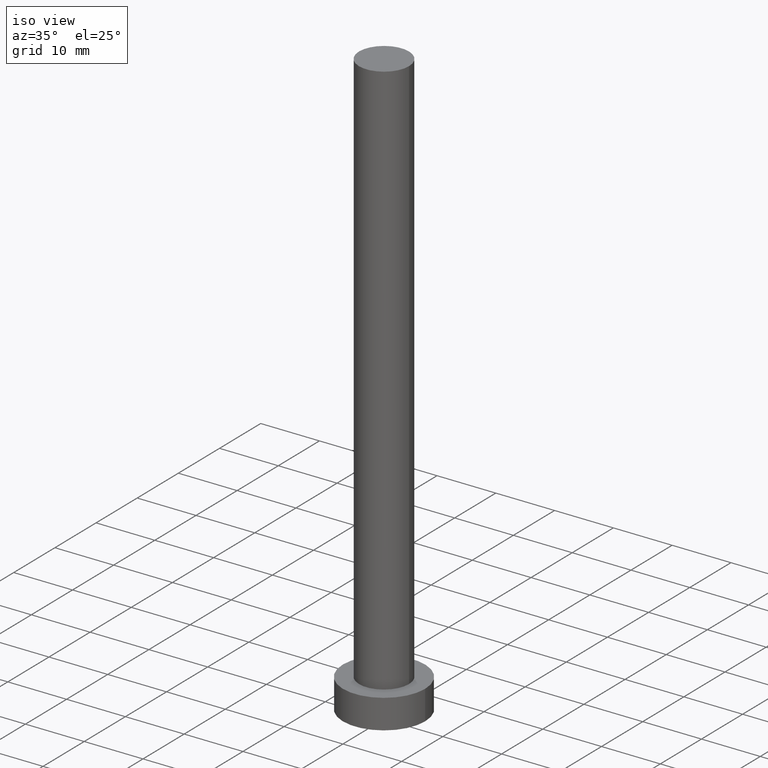
[diagram: clean part render]
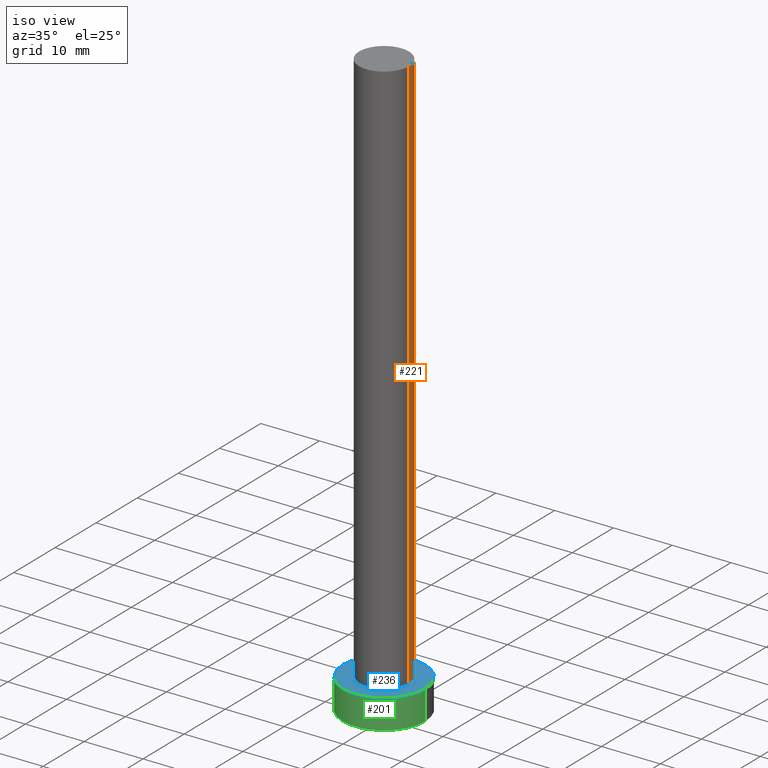
[diagram: same view with three faces highlighted in distinct colors, each labeled with its STEP entity id]
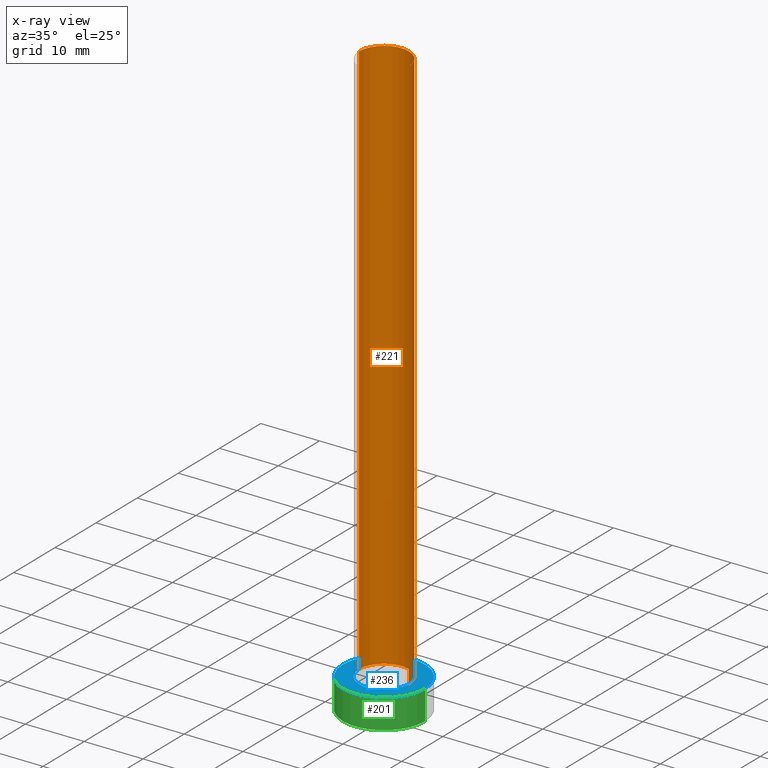
[diagram: x-ray of the same camera — body ghosted, the three highlighted faces saturated]
A machine part, iso view with three faces highlighted in distinct colors.
The next image is the same camera in x-ray (body ghosted, the three faces saturated) — at least one of them is partly hidden behind the body in this view.
Their STEP definitions:

[orange] entity #221 — the highlighted cylindrical surface (edge-blend (fillet) strip) has radius 4.25 mm, axis along (-0, -0, -1).
#5 = CARTESIAN_POINT ( 'NONE',  ( -4.250000000000000000, 0.000000000000000000, 100.0000000000000000 ) ) ;
#10 = LINE ( 'NONE', #169, #60 ) ;
#17 = EDGE_CURVE ( 'NONE', #189, #52, #10, .T. ) ;
#21 = AXIS2_PLACEMENT_3D ( 'NONE', #97, #123, #254 ) ;
#26 = CARTESIAN_POINT ( 'NONE',  ( 0.000000000000000000, 0.000000000000000000, 100.0000000000000000 ) ) ;
#39 = DIRECTION ( 'NONE',  ( -0.000000000000000000, -0.000000000000000000, -1.000000000000000000 ) ) ;
#40 = ORIENTED_EDGE ( 'NONE', *, *, #116, .T. ) ;
#42 = DIRECTION ( 'NONE',  ( 0.000000000000000000, 0.000000000000000000, 1.000000000000000000 ) ) ;
#43 = CARTESIAN_POINT ( 'NONE',  ( 4.250000000000000000, 5.204748896376250699E-16, 100.0000000000000000 ) ) ;
#47 = FACE_OUTER_BOUND ( 'NONE', #207, .T. ) ;
#52 = VERTEX_POINT ( 'NONE', #209 ) ;
#60 = VECTOR ( 'NONE', #223, 1000.000000000000000 ) ;
#73 = CIRCLE ( 'NONE', #21, 4.250000000000000000 ) ;
#75 = VECTOR ( 'NONE', #240, 1000.000000000000000 ) ;
#81 = DIRECTION ( 'NONE',  ( -1.000000000000000000, 0.000000000000000000, 0.000000000000000000 ) ) ;
#87 = CIRCLE ( 'NONE', #104, 4.250000000000000000 ) ;
#97 = CARTESIAN_POINT ( 'NONE',  ( 0.000000000000000000, 0.000000000000000000, 5.000000000000000000 ) ) ;
#99 = ORIENTED_EDGE ( 'NONE', *, *, #194, .F. ) ;
#101 = VERTEX_POINT ( 'NONE', #113 ) ;
#104 = AXIS2_PLACEMENT_3D ( 'NONE', #177, #42, #184 ) ;
#113 = CARTESIAN_POINT ( 'NONE',  ( -4.250000000000000000, 0.000000000000000000, 5.000000000000000000 ) ) ;
#116 = EDGE_CURVE ( 'NONE', #52, #101, #73, .T. ) ;
#122 = AXIS2_PLACEMENT_3D ( 'NONE', #26, #39, #81 ) ;
#123 = DIRECTION ( 'NONE',  ( 0.000000000000000000, 0.000000000000000000, 1.000000000000000000 ) ) ;
#125 = VERTEX_POINT ( 'NONE', #5 ) ;
#139 = EDGE_CURVE ( 'NONE', #189, #125, #87, .T. ) ;
#144 = LINE ( 'NONE', #202, #75 ) ;
#148 = CYLINDRICAL_SURFACE ( 'NONE', #122, 4.250000000000000000 ) ;
#156 = ORIENTED_EDGE ( 'NONE', *, *, #17, .T. ) ;
#169 = CARTESIAN_POINT ( 'NONE',  ( 4.250000000000000000, 5.204748896376250699E-16, 100.0000000000000000 ) ) ;
#177 = CARTESIAN_POINT ( 'NONE',  ( 0.000000000000000000, 0.000000000000000000, 100.0000000000000000 ) ) ;
#184 = DIRECTION ( 'NONE',  ( 1.000000000000000000, 0.000000000000000000, 0.000000000000000000 ) ) ;
#189 = VERTEX_POINT ( 'NONE', #43 ) ;
#194 = EDGE_CURVE ( 'NONE', #125, #101, #144, .T. ) ;
#202 = CARTESIAN_POINT ( 'NONE',  ( -4.250000000000000000, 0.000000000000000000, 100.0000000000000000 ) ) ;
#207 = EDGE_LOOP ( 'NONE', ( #237, #156, #40, #99 ) ) ;
#209 = CARTESIAN_POINT ( 'NONE',  ( 4.250000000000000000, 5.204748896376250699E-16, 5.000000000000000000 ) ) ;
#221 = ADVANCED_FACE ( 'NONE', ( #47 ), #148, .T. ) ;
#223 = DIRECTION ( 'NONE',  ( -0.000000000000000000, -0.000000000000000000, -1.000000000000000000 ) ) ;
#237 = ORIENTED_EDGE ( 'NONE', *, *, #139, .F. ) ;
#240 = DIRECTION ( 'NONE',  ( -0.000000000000000000, -0.000000000000000000, -1.000000000000000000 ) ) ;
#254 = DIRECTION ( 'NONE',  ( 1.000000000000000000, 0.000000000000000000, 0.000000000000000000 ) ) ;

[blue] entity #236 — the highlighted planar face has unit normal (0, 0, 1).
#2 = ORIENTED_EDGE ( 'NONE', *, *, #116, .F. ) ;
#14 = EDGE_CURVE ( 'NONE', #255, #229, #161, .T. ) ;
#16 = CIRCLE ( 'NONE', #54, 7.000000000000000000 ) ;
#21 = AXIS2_PLACEMENT_3D ( 'NONE', #97, #123, #254 ) ;
#23 = ORIENTED_EDGE ( 'NONE', *, *, #215, .T. ) ;
#24 = DIRECTION ( 'NONE',  ( 0.000000000000000000, 0.000000000000000000, 1.000000000000000000 ) ) ;
#33 = EDGE_LOOP ( 'NONE', ( #175, #2 ) ) ;
#44 = DIRECTION ( 'NONE',  ( 1.000000000000000000, 0.000000000000000000, -0.000000000000000000 ) ) ;
#48 = CARTESIAN_POINT ( 'NONE',  ( 0.000000000000000000, 0.000000000000000000, 5.000000000000000000 ) ) ;
#50 = DIRECTION ( 'NONE',  ( 1.000000000000000000, 0.000000000000000000, 0.000000000000000000 ) ) ;
#52 = VERTEX_POINT ( 'NONE', #209 ) ;
#53 = CARTESIAN_POINT ( 'NONE',  ( 0.000000000000000000, 0.000000000000000000, 5.000000000000000000 ) ) ;
#54 = AXIS2_PLACEMENT_3D ( 'NONE', #216, #183, #102 ) ;
#59 = EDGE_CURVE ( 'NONE', #101, #52, #224, .T. ) ;
#73 = CIRCLE ( 'NONE', #21, 4.250000000000000000 ) ;
#82 = PLANE ( 'NONE',  #190 ) ;
#97 = CARTESIAN_POINT ( 'NONE',  ( 0.000000000000000000, 0.000000000000000000, 5.000000000000000000 ) ) ;
#101 = VERTEX_POINT ( 'NONE', #113 ) ;
#102 = DIRECTION ( 'NONE',  ( 1.000000000000000000, 0.000000000000000000, 0.000000000000000000 ) ) ;
#113 = CARTESIAN_POINT ( 'NONE',  ( -4.250000000000000000, 0.000000000000000000, 5.000000000000000000 ) ) ;
#116 = EDGE_CURVE ( 'NONE', #52, #101, #73, .T. ) ;
#117 = AXIS2_PLACEMENT_3D ( 'NONE', #53, #192, #187 ) ;
#121 = CARTESIAN_POINT ( 'NONE',  ( 7.000000000000000000, 8.572527594031473190E-16, 5.000000000000000000 ) ) ;
#123 = DIRECTION ( 'NONE',  ( 0.000000000000000000, 0.000000000000000000, 1.000000000000000000 ) ) ;
#136 = DIRECTION ( 'NONE',  ( 0.000000000000000000, 0.000000000000000000, 1.000000000000000000 ) ) ;
#158 = AXIS2_PLACEMENT_3D ( 'NONE', #48, #136, #50 ) ;
#161 = CIRCLE ( 'NONE', #117, 7.000000000000000000 ) ;
#165 = CARTESIAN_POINT ( 'NONE',  ( -7.000000000000000000, 0.000000000000000000, 5.000000000000000000 ) ) ;
#167 = CARTESIAN_POINT ( 'NONE',  ( 0.000000000000000000, 0.000000000000000000, 5.000000000000000000 ) ) ;
#175 = ORIENTED_EDGE ( 'NONE', *, *, #59, .F. ) ;
#180 = ORIENTED_EDGE ( 'NONE', *, *, #14, .T. ) ;
#183 = DIRECTION ( 'NONE',  ( 0.000000000000000000, 0.000000000000000000, 1.000000000000000000 ) ) ;
#186 = EDGE_LOOP ( 'NONE', ( #180, #23 ) ) ;
#187 = DIRECTION ( 'NONE',  ( 1.000000000000000000, 0.000000000000000000, 0.000000000000000000 ) ) ;
#190 = AXIS2_PLACEMENT_3D ( 'NONE', #167, #24, #44 ) ;
#192 = DIRECTION ( 'NONE',  ( 0.000000000000000000, 0.000000000000000000, 1.000000000000000000 ) ) ;
#196 = FACE_BOUND ( 'NONE', #33, .T. ) ;
#197 = FACE_OUTER_BOUND ( 'NONE', #186, .T. ) ;
#209 = CARTESIAN_POINT ( 'NONE',  ( 4.250000000000000000, 5.204748896376250699E-16, 5.000000000000000000 ) ) ;
#215 = EDGE_CURVE ( 'NONE', #229, #255, #16, .T. ) ;
#216 = CARTESIAN_POINT ( 'NONE',  ( 0.000000000000000000, 0.000000000000000000, 5.000000000000000000 ) ) ;
#224 = CIRCLE ( 'NONE', #158, 4.250000000000000000 ) ;
#229 = VERTEX_POINT ( 'NONE', #121 ) ;
#236 = ADVANCED_FACE ( 'NONE', ( #196, #197 ), #82, .T. ) ;
#254 = DIRECTION ( 'NONE',  ( 1.000000000000000000, 0.000000000000000000, 0.000000000000000000 ) ) ;
#255 = VERTEX_POINT ( 'NONE', #165 ) ;

[green] entity #201 — the highlighted cylindrical surface (partial cylindrical patch) has radius 7 mm, axis along (-0, -0, -1).
#1 = LINE ( 'NONE', #126, #28 ) ;
#6 = ORIENTED_EDGE ( 'NONE', *, *, #142, .T. ) ;
#12 = CARTESIAN_POINT ( 'NONE',  ( 7.000000000000000000, 8.572527594031473190E-16, 0.000000000000000000 ) ) ;
#14 = EDGE_CURVE ( 'NONE', #255, #229, #161, .T. ) ;
#22 = CYLINDRICAL_SURFACE ( 'NONE', #214, 7.000000000000000000 ) ;
#25 = FACE_OUTER_BOUND ( 'NONE', #65, .T. ) ;
#28 = VECTOR ( 'NONE', #84, 1000.000000000000000 ) ;
#38 = VERTEX_POINT ( 'NONE', #12 ) ;
#41 = AXIS2_PLACEMENT_3D ( 'NONE', #239, #200, #64 ) ;
#53 = CARTESIAN_POINT ( 'NONE',  ( 0.000000000000000000, 0.000000000000000000, 5.000000000000000000 ) ) ;
#58 = DIRECTION ( 'NONE',  ( -0.000000000000000000, -0.000000000000000000, -1.000000000000000000 ) ) ;
#63 = CARTESIAN_POINT ( 'NONE',  ( -7.000000000000000000, 0.000000000000000000, 0.000000000000000000 ) ) ;
#64 = DIRECTION ( 'NONE',  ( 1.000000000000000000, 0.000000000000000000, 0.000000000000000000 ) ) ;
#65 = EDGE_LOOP ( 'NONE', ( #70, #85, #164, #6 ) ) ;
#70 = ORIENTED_EDGE ( 'NONE', *, *, #157, .F. ) ;
#71 = DIRECTION ( 'NONE',  ( -0.000000000000000000, -0.000000000000000000, -1.000000000000000000 ) ) ;
#84 = DIRECTION ( 'NONE',  ( -0.000000000000000000, -0.000000000000000000, -1.000000000000000000 ) ) ;
#85 = ORIENTED_EDGE ( 'NONE', *, *, #14, .F. ) ;
#91 = LINE ( 'NONE', #250, #141 ) ;
#103 = EDGE_CURVE ( 'NONE', #255, #171, #91, .T. ) ;
#117 = AXIS2_PLACEMENT_3D ( 'NONE', #53, #192, #187 ) ;
#121 = CARTESIAN_POINT ( 'NONE',  ( 7.000000000000000000, 8.572527594031473190E-16, 5.000000000000000000 ) ) ;
#126 = CARTESIAN_POINT ( 'NONE',  ( 7.000000000000000000, 8.572527594031473190E-16, 5.000000000000000000 ) ) ;
#141 = VECTOR ( 'NONE', #71, 1000.000000000000000 ) ;
#142 = EDGE_CURVE ( 'NONE', #171, #38, #233, .T. ) ;
#157 = EDGE_CURVE ( 'NONE', #229, #38, #1, .T. ) ;
#161 = CIRCLE ( 'NONE', #117, 7.000000000000000000 ) ;
#164 = ORIENTED_EDGE ( 'NONE', *, *, #103, .T. ) ;
#165 = CARTESIAN_POINT ( 'NONE',  ( -7.000000000000000000, 0.000000000000000000, 5.000000000000000000 ) ) ;
#171 = VERTEX_POINT ( 'NONE', #63 ) ;
#187 = DIRECTION ( 'NONE',  ( 1.000000000000000000, 0.000000000000000000, 0.000000000000000000 ) ) ;
#192 = DIRECTION ( 'NONE',  ( 0.000000000000000000, 0.000000000000000000, 1.000000000000000000 ) ) ;
#200 = DIRECTION ( 'NONE',  ( 0.000000000000000000, 0.000000000000000000, 1.000000000000000000 ) ) ;
#201 = ADVANCED_FACE ( 'NONE', ( #25 ), #22, .T. ) ;
#214 = AXIS2_PLACEMENT_3D ( 'NONE', #234, #58, #222 ) ;
#222 = DIRECTION ( 'NONE',  ( -1.000000000000000000, 0.000000000000000000, 0.000000000000000000 ) ) ;
#229 = VERTEX_POINT ( 'NONE', #121 ) ;
#233 = CIRCLE ( 'NONE', #41, 7.000000000000000000 ) ;
#234 = CARTESIAN_POINT ( 'NONE',  ( 0.000000000000000000, 0.000000000000000000, 5.000000000000000000 ) ) ;
#239 = CARTESIAN_POINT ( 'NONE',  ( 0.000000000000000000, 0.000000000000000000, 0.000000000000000000 ) ) ;
#250 = CARTESIAN_POINT ( 'NONE',  ( -7.000000000000000000, 0.000000000000000000, 5.000000000000000000 ) ) ;
#255 = VERTEX_POINT ( 'NONE', #165 ) ;